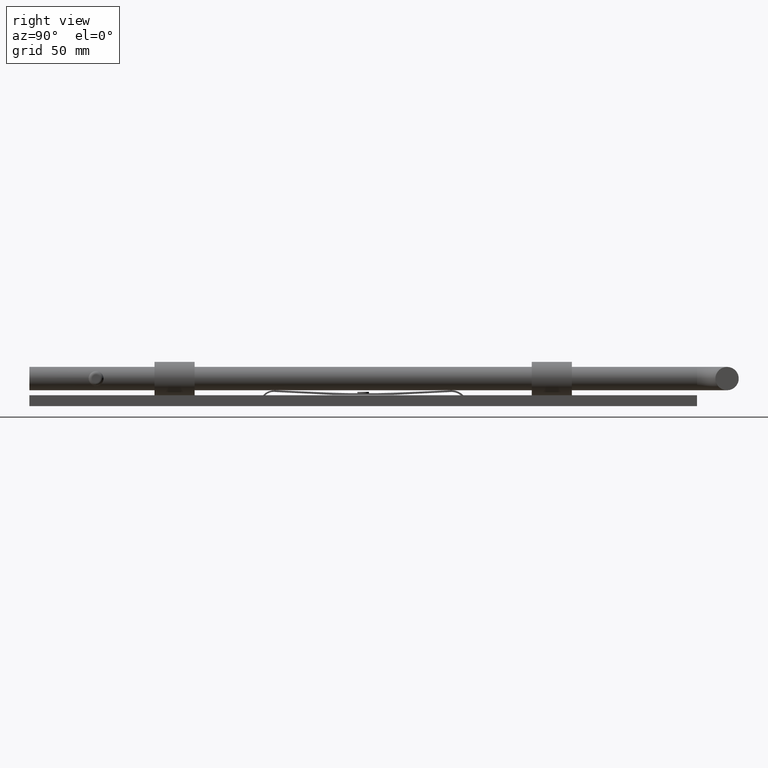
[diagram: clean part render]
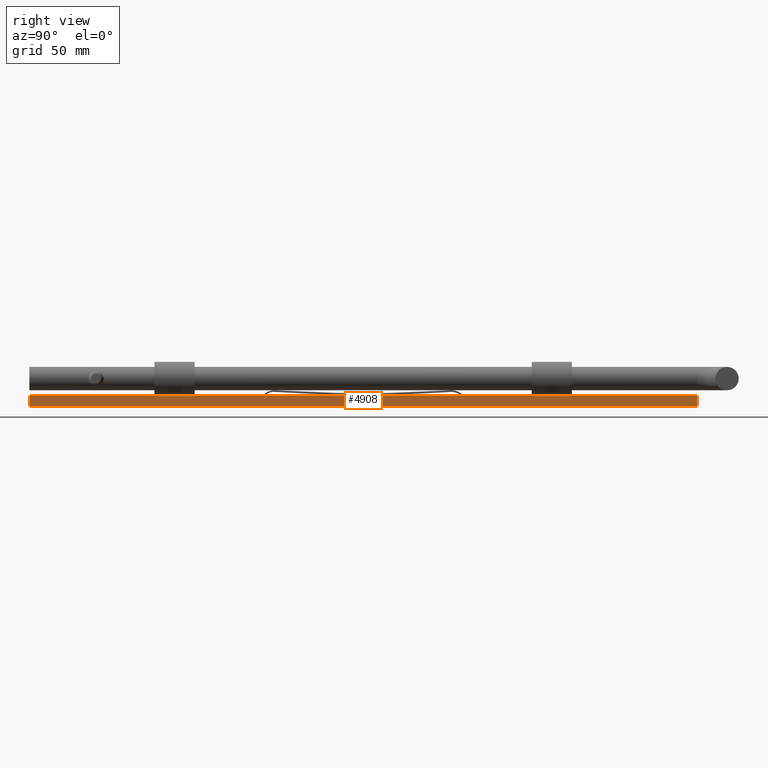
[diagram: same view with one face highlighted and labeled with its STEP entity id]
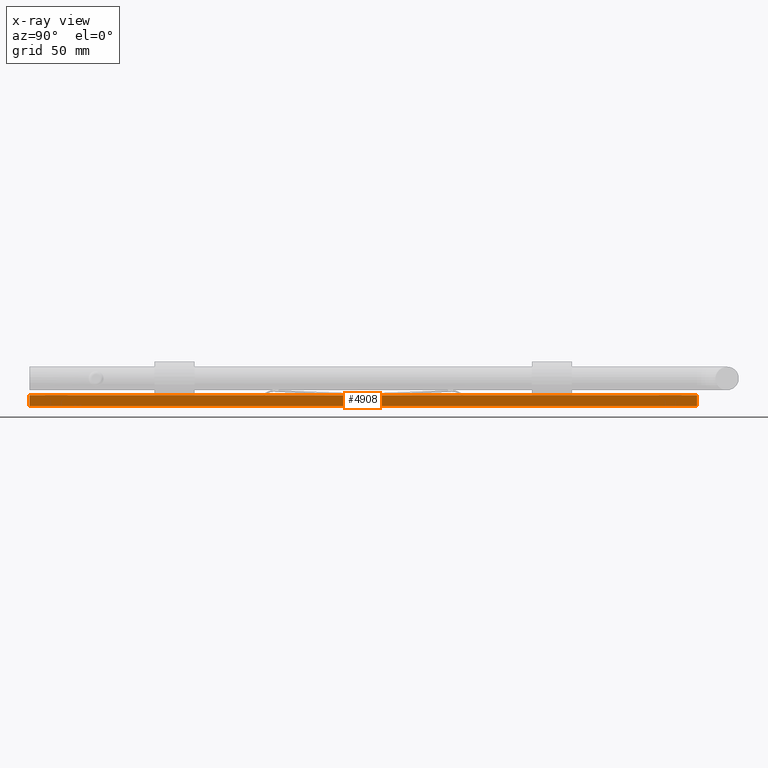
[diagram: x-ray of the same camera — body ghosted, the highlighted face saturated]
A machine part, right view. The second image highlights one B-rep face of the part: STEP entity #4908.
The next image is the same camera in x-ray: the body ghosted, the highlighted face saturated — about 0% of this face is hidden behind the body in this view.
In plain terms, the highlighted planar face has unit normal (-1, -0, 0).
Its self-contained STEP definition (entity closure, byte-faithful):
#9 = DIRECTION ( 'NONE',  ( -0.000000000000000000, -0.000000000000000000, -1.000000000000000000 ) ) ;
#420 = CARTESIAN_POINT ( 'NONE',  ( 12.49999999999995559, 200.0000000000000853, 6.500000000000000000 ) ) ;
#496 = CARTESIAN_POINT ( 'NONE',  ( 12.49999999999995559, 200.0000000000000853, 6.500000000000000000 ) ) ;
#678 = VECTOR ( 'NONE', #4095, 1000.000000000000000 ) ;
#1200 = CARTESIAN_POINT ( 'NONE',  ( 12.50000000000001066, -199.9999999999999716, 0.000000000000000000 ) ) ;
#1310 = AXIS2_PLACEMENT_3D ( 'NONE', #3468, #10180, #5594 ) ;
#1685 = VERTEX_POINT ( 'NONE', #9985 ) ;
#2976 = LINE ( 'NONE', #8961, #6420 ) ;
#3085 = DIRECTION ( 'NONE',  ( -1.387778780781445429E-16, 1.000000000000000000, -0.000000000000000000 ) ) ;
#3229 = VECTOR ( 'NONE', #9, 1000.000000000000000 ) ;
#3468 = CARTESIAN_POINT ( 'NONE',  ( 12.49999999999995559, 200.0000000000000853, 6.500000000000000000 ) ) ;
#3769 = CARTESIAN_POINT ( 'NONE',  ( 12.50000000000001066, -199.9999999999999716, 6.500000000000000000 ) ) ;
#3896 = FACE_OUTER_BOUND ( 'NONE', #7460, .T. ) ;
#3900 = EDGE_CURVE ( 'NONE', #4828, #8750, #10372, .T. ) ;
#4095 = DIRECTION ( 'NONE',  ( -0.000000000000000000, -0.000000000000000000, -1.000000000000000000 ) ) ;
#4828 = VERTEX_POINT ( 'NONE', #420 ) ;
#4908 = ADVANCED_FACE ( 'NONE', ( #3896 ), #10094, .F. ) ;
#5066 = ORIENTED_EDGE ( 'NONE', *, *, #8635, .T. ) ;
#5197 = ORIENTED_EDGE ( 'NONE', *, *, #5844, .T. ) ;
#5594 = DIRECTION ( 'NONE',  ( 1.387778780781445676E-16, -1.000000000000000000, 0.000000000000000000 ) ) ;
#5609 = LINE ( 'NONE', #9510, #11769 ) ;
#5844 = EDGE_CURVE ( 'NONE', #6210, #8750, #2976, .T. ) ;
#6210 = VERTEX_POINT ( 'NONE', #1200 ) ;
#6420 = VECTOR ( 'NONE', #3085, 1000.000000000000000 ) ;
#7460 = EDGE_LOOP ( 'NONE', ( #5197, #8948, #8899, #5066 ) ) ;
#8549 = DIRECTION ( 'NONE',  ( -1.387778780781445429E-16, 1.000000000000000000, -0.000000000000000000 ) ) ;
#8635 = EDGE_CURVE ( 'NONE', #1685, #6210, #9694, .T. ) ;
#8750 = VERTEX_POINT ( 'NONE', #10653 ) ;
#8899 = ORIENTED_EDGE ( 'NONE', *, *, #11587, .F. ) ;
#8948 = ORIENTED_EDGE ( 'NONE', *, *, #3900, .F. ) ;
#8961 = CARTESIAN_POINT ( 'NONE',  ( 12.49999999999995559, 200.0000000000000853, 0.000000000000000000 ) ) ;
#9510 = CARTESIAN_POINT ( 'NONE',  ( 12.49999999999995559, 200.0000000000000853, 6.500000000000000000 ) ) ;
#9694 = LINE ( 'NONE', #3769, #3229 ) ;
#9985 = CARTESIAN_POINT ( 'NONE',  ( 12.50000000000001066, -199.9999999999999716, 6.500000000000000000 ) ) ;
#10094 = PLANE ( 'NONE',  #1310 ) ;
#10180 = DIRECTION ( 'NONE',  ( -1.000000000000000000, -1.387778780781445676E-16, 0.000000000000000000 ) ) ;
#10372 = LINE ( 'NONE', #496, #678 ) ;
#10653 = CARTESIAN_POINT ( 'NONE',  ( 12.49999999999995559, 200.0000000000000853, 0.000000000000000000 ) ) ;
#11587 = EDGE_CURVE ( 'NONE', #1685, #4828, #5609, .T. ) ;
#11769 = VECTOR ( 'NONE', #8549, 1000.000000000000000 ) ;